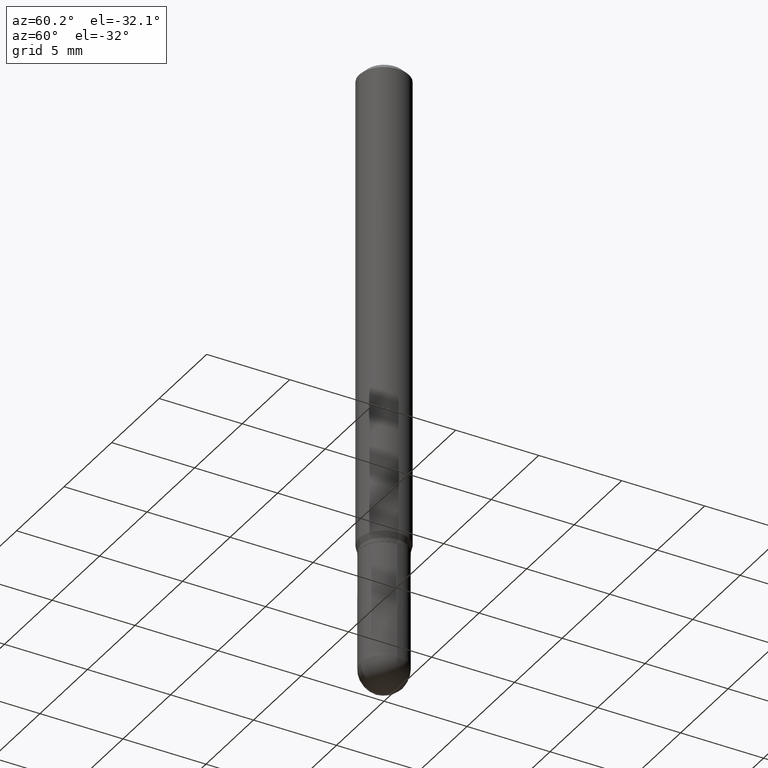
[diagram: clean part render]
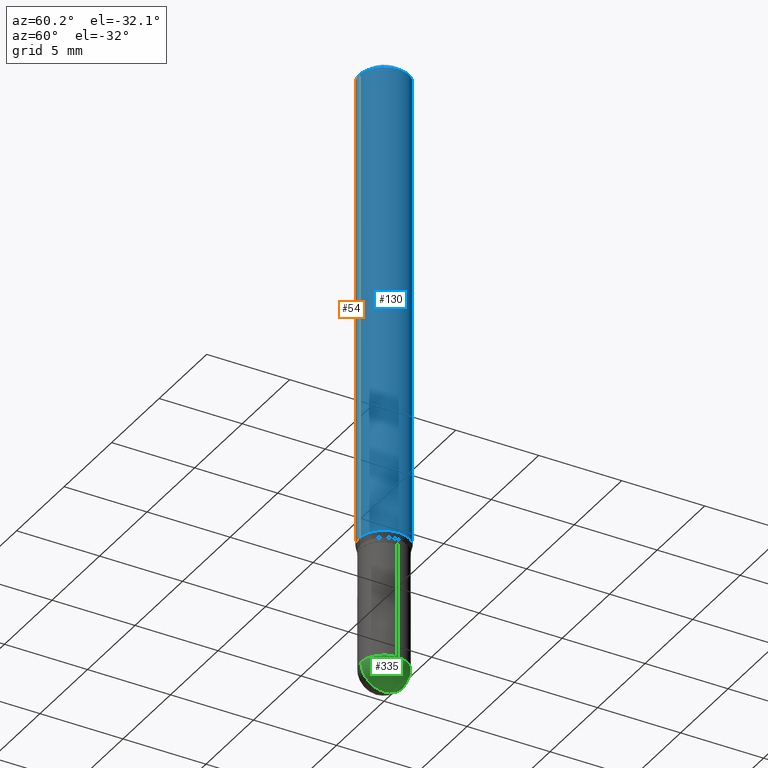
[diagram: same view with three faces highlighted in distinct colors, each labeled with its STEP entity id]
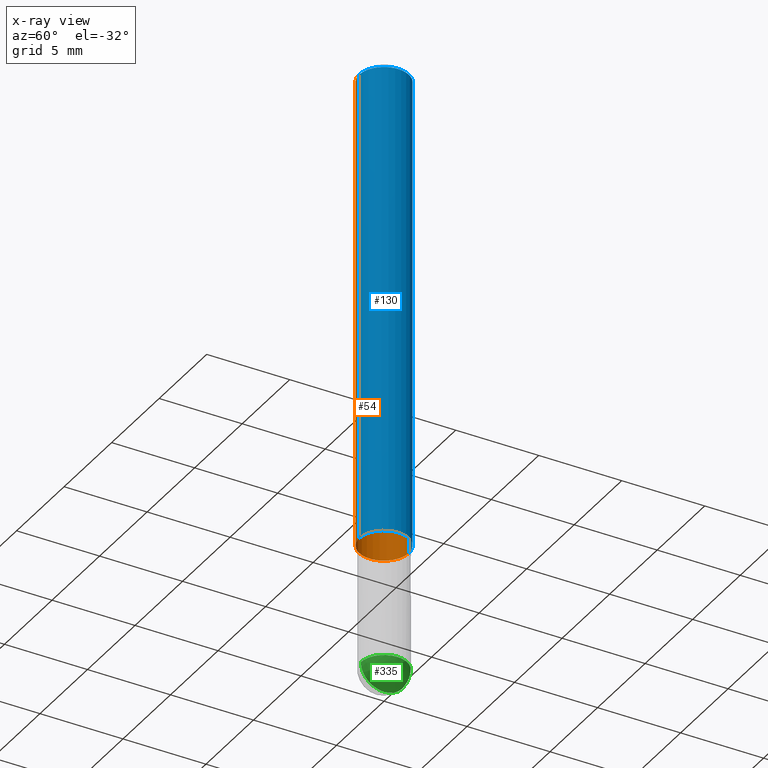
[diagram: x-ray of the same camera — body ghosted, the three highlighted faces saturated]
A machine part, auxiliary view with three faces highlighted in distinct colors.
The next image is the same camera in x-ray (body ghosted, the three faces saturated) — at least one of them is partly hidden behind the body in this view.
Their STEP definitions:

[orange] entity #54 — the highlighted cylindrical surface (edge-blend (fillet) strip) has radius 1.4999 mm, axis along (-0, 0, 1).
#8 = CARTESIAN_POINT ( 'NONE',  ( -4.123439461173739834E-16, -0.05904999999999999832, 2.061750760752110574E-16 ) ) ;
#23 = VECTOR ( 'NONE', #123, 39.37007874015748143 ) ;
#38 = DIRECTION ( 'NONE',  ( -2.445432111437345549E-29, 3.491533887810517591E-15, 1.000000000000000000 ) ) ;
#40 = DIRECTION ( 'NONE',  ( -2.445432111437345549E-29, 3.491533887810517591E-15, 1.000000000000000000 ) ) ;
#54 = ADVANCED_FACE ( 'NONE', ( #117 ), #196, .T. ) ;
#73 = CARTESIAN_POINT ( 'NONE',  ( 0.000000000000000000, 0.000000000000000000, 0.000000000000000000 ) ) ;
#79 = CIRCLE ( 'NONE', #470, 0.05904999999999999832 ) ;
#80 = LINE ( 'NONE', #482, #23 ) ;
#83 = CARTESIAN_POINT ( 'NONE',  ( 2.789402677853648417E-29, -3.982647455606926510E-15, -1.140658399310103155 ) ) ;
#84 = EDGE_CURVE ( 'NONE', #217, #288, #79, .T. ) ;
#86 = LINE ( 'NONE', #8, #371 ) ;
#117 = FACE_OUTER_BOUND ( 'NONE', #206, .T. ) ;
#123 = DIRECTION ( 'NONE',  ( -2.445432111437345549E-29, 3.491533887810517197E-15, 1.000000000000000000 ) ) ;
#165 = ORIENTED_EDGE ( 'NONE', *, *, #266, .T. ) ;
#196 = CYLINDRICAL_SURFACE ( 'NONE', #383, 0.05904999999999999832 ) ;
#206 = EDGE_LOOP ( 'NONE', ( #445, #165, #433, #385 ) ) ;
#213 = DIRECTION ( 'NONE',  ( -6.982962677686265922E-15, -1.000000000000000000, 4.626330217890369336E-15 ) ) ;
#217 = VERTEX_POINT ( 'NONE', #375 ) ;
#237 = CARTESIAN_POINT ( 'NONE',  ( 3.668148167156040884E-31, -5.237300831715808113E-17, -0.01500000000000009139 ) ) ;
#240 = DIRECTION ( 'NONE',  ( -2.445432111437345549E-29, 3.491533887810517591E-15, 1.000000000000000000 ) ) ;
#248 = EDGE_CURVE ( 'NONE', #438, #217, #80, .T. ) ;
#266 = EDGE_CURVE ( 'NONE', #438, #318, #480, .T. ) ;
#288 = VERTEX_POINT ( 'NONE', #334 ) ;
#289 = CARTESIAN_POINT ( 'NONE',  ( -4.123439461173462253E-16, -0.05905000000000400207, -1.140658399310102933 ) ) ;
#292 = EDGE_CURVE ( 'NONE', #318, #288, #86, .T. ) ;
#318 = VERTEX_POINT ( 'NONE', #289 ) ;
#334 = CARTESIAN_POINT ( 'NONE',  ( -4.123439461173736383E-16, -0.05905000000000005383, -0.01499999999999988495 ) ) ;
#362 = AXIS2_PLACEMENT_3D ( 'NONE', #83, #40, #213 ) ;
#371 = VECTOR ( 'NONE', #376, 39.37007874015748143 ) ;
#375 = CARTESIAN_POINT ( 'NONE',  ( 4.195754854663672017E-16, 0.05904999999999994975, -0.01500000000000029955 ) ) ;
#376 = DIRECTION ( 'NONE',  ( -2.445432111437345549E-29, 3.491533887810517197E-15, 1.000000000000000000 ) ) ;
#383 = AXIS2_PLACEMENT_3D ( 'NONE', #73, #240, #465 ) ;
#385 = ORIENTED_EDGE ( 'NONE', *, *, #84, .F. ) ;
#433 = ORIENTED_EDGE ( 'NONE', *, *, #292, .T. ) ;
#438 = VERTEX_POINT ( 'NONE', #500 ) ;
#445 = ORIENTED_EDGE ( 'NONE', *, *, #248, .F. ) ;
#465 = DIRECTION ( 'NONE',  ( -6.982962677686265922E-15, -1.000000000000000000, 3.491533887810517591E-15 ) ) ;
#470 = AXIS2_PLACEMENT_3D ( 'NONE', #237, #38, #472 ) ;
#472 = DIRECTION ( 'NONE',  ( -6.982962677686265922E-15, -1.000000000000000000, 3.505890868245046092E-15 ) ) ;
#480 = CIRCLE ( 'NONE', #362, 0.05904999999999999832 ) ;
#482 = CARTESIAN_POINT ( 'NONE',  ( 4.195754854663390985E-16, 0.05904999999999999832, -2.061750760752110574E-16 ) ) ;
#500 = CARTESIAN_POINT ( 'NONE',  ( 4.195754854663668566E-16, 0.05904999999999599458, -1.140658399310103377 ) ) ;

[blue] entity #130 — the highlighted cylindrical surface (edge-blend (fillet) strip) has radius 1.4999 mm, axis along (-0, 0, 1).
#8 = CARTESIAN_POINT ( 'NONE',  ( -4.123439461173739834E-16, -0.05904999999999999832, 2.061750760752110574E-16 ) ) ;
#23 = VECTOR ( 'NONE', #123, 39.37007874015748143 ) ;
#30 = AXIS2_PLACEMENT_3D ( 'NONE', #45, #370, #405 ) ;
#45 = CARTESIAN_POINT ( 'NONE',  ( 3.668148167156040884E-31, -5.237300831715808113E-17, -0.01500000000000009139 ) ) ;
#61 = DIRECTION ( 'NONE',  ( -6.982962677686265922E-15, -1.000000000000000000, 3.491533887810517591E-15 ) ) ;
#80 = LINE ( 'NONE', #482, #23 ) ;
#86 = LINE ( 'NONE', #8, #371 ) ;
#99 = EDGE_CURVE ( 'NONE', #318, #438, #337, .T. ) ;
#114 = CARTESIAN_POINT ( 'NONE',  ( 2.789402677853648417E-29, -3.982647455606926510E-15, -1.140658399310103155 ) ) ;
#123 = DIRECTION ( 'NONE',  ( -2.445432111437345549E-29, 3.491533887810517197E-15, 1.000000000000000000 ) ) ;
#130 = ADVANCED_FACE ( 'NONE', ( #437 ), #203, .T. ) ;
#169 = ORIENTED_EDGE ( 'NONE', *, *, #248, .T. ) ;
#203 = CYLINDRICAL_SURFACE ( 'NONE', #498, 0.05904999999999999832 ) ;
#217 = VERTEX_POINT ( 'NONE', #375 ) ;
#223 = EDGE_CURVE ( 'NONE', #288, #217, #423, .T. ) ;
#248 = EDGE_CURVE ( 'NONE', #438, #217, #80, .T. ) ;
#274 = ORIENTED_EDGE ( 'NONE', *, *, #99, .T. ) ;
#282 = ORIENTED_EDGE ( 'NONE', *, *, #223, .F. ) ;
#288 = VERTEX_POINT ( 'NONE', #334 ) ;
#289 = CARTESIAN_POINT ( 'NONE',  ( -4.123439461173462253E-16, -0.05905000000000400207, -1.140658399310102933 ) ) ;
#292 = EDGE_CURVE ( 'NONE', #318, #288, #86, .T. ) ;
#301 = AXIS2_PLACEMENT_3D ( 'NONE', #114, #317, #359 ) ;
#317 = DIRECTION ( 'NONE',  ( -2.445432111437345549E-29, 3.491533887810517591E-15, 1.000000000000000000 ) ) ;
#318 = VERTEX_POINT ( 'NONE', #289 ) ;
#334 = CARTESIAN_POINT ( 'NONE',  ( -4.123439461173736383E-16, -0.05905000000000005383, -0.01499999999999988495 ) ) ;
#337 = CIRCLE ( 'NONE', #301, 0.05904999999999999832 ) ;
#359 = DIRECTION ( 'NONE',  ( -6.982962677686265922E-15, -1.000000000000000000, 4.626330217890369336E-15 ) ) ;
#370 = DIRECTION ( 'NONE',  ( -2.445432111437345549E-29, 3.491533887810517591E-15, 1.000000000000000000 ) ) ;
#371 = VECTOR ( 'NONE', #376, 39.37007874015748143 ) ;
#374 = ORIENTED_EDGE ( 'NONE', *, *, #292, .F. ) ;
#375 = CARTESIAN_POINT ( 'NONE',  ( 4.195754854663672017E-16, 0.05904999999999994975, -0.01500000000000029955 ) ) ;
#376 = DIRECTION ( 'NONE',  ( -2.445432111437345549E-29, 3.491533887810517197E-15, 1.000000000000000000 ) ) ;
#400 = CARTESIAN_POINT ( 'NONE',  ( 0.000000000000000000, 0.000000000000000000, 0.000000000000000000 ) ) ;
#405 = DIRECTION ( 'NONE',  ( -6.982962677686265922E-15, -1.000000000000000000, 3.505890868245046092E-15 ) ) ;
#423 = CIRCLE ( 'NONE', #30, 0.05904999999999999832 ) ;
#437 = FACE_OUTER_BOUND ( 'NONE', #469, .T. ) ;
#438 = VERTEX_POINT ( 'NONE', #500 ) ;
#468 = DIRECTION ( 'NONE',  ( -2.445432111437345549E-29, 3.491533887810517591E-15, 1.000000000000000000 ) ) ;
#469 = EDGE_LOOP ( 'NONE', ( #274, #169, #282, #374 ) ) ;
#482 = CARTESIAN_POINT ( 'NONE',  ( 4.195754854663390985E-16, 0.05904999999999999832, -2.061750760752110574E-16 ) ) ;
#498 = AXIS2_PLACEMENT_3D ( 'NONE', #400, #468, #61 ) ;
#500 = CARTESIAN_POINT ( 'NONE',  ( 4.195754854663668566E-16, 0.05904999999999599458, -1.140658399310103377 ) ) ;

[green] entity #335 — the highlighted spherical surface has radius 1.3995 mm.
#5 = VERTEX_POINT ( 'NONE', #387 ) ;
#10 = CIRCLE ( 'NONE', #194, 0.05510000000000001702 ) ;
#16 = DIRECTION ( 'NONE',  ( 1.000000000000000000, -7.105427357601001070E-15, 4.926315508542082329E-29 ) ) ;
#22 = SPHERICAL_SURFACE ( 'NONE', #135, 0.05509999999999996151 ) ;
#24 = DIRECTION ( 'NONE',  ( -1.000000000000000000, 6.982962677686265922E-15, -4.883557194083112340E-29 ) ) ;
#31 = CARTESIAN_POINT ( 'NONE',  ( 3.915090474038502304E-16, 0.05509999999999495857, -1.441000000000000059 ) ) ;
#49 = AXIS2_PLACEMENT_3D ( 'NONE', #218, #205, #129 ) ;
#57 = VERTEX_POINT ( 'NONE', #440 ) ;
#71 = EDGE_LOOP ( 'NONE', ( #436, #185, #501, #103 ) ) ;
#82 = FACE_OUTER_BOUND ( 'NONE', #71, .T. ) ;
#92 = CIRCLE ( 'NONE', #391, 0.05509999999999996151 ) ;
#97 = VERTEX_POINT ( 'NONE', #31 ) ;
#102 = DIRECTION ( 'NONE',  ( -6.982962677686265922E-15, -1.000000000000000000, 4.957981839681061778E-15 ) ) ;
#103 = ORIENTED_EDGE ( 'NONE', *, *, #421, .F. ) ;
#129 = DIRECTION ( 'NONE',  ( 1.000000000000000000, -6.982962677686272233E-15, 0.000000000000000000 ) ) ;
#132 = CARTESIAN_POINT ( 'NONE',  ( 3.519208583459403574E-29, -5.037972413136274752E-15, -1.441000000000000059 ) ) ;
#133 = DIRECTION ( 'NONE',  ( 1.000000000000000000, -6.982962677686272233E-15, 0.000000000000000000 ) ) ;
#135 = AXIS2_PLACEMENT_3D ( 'NONE', #132, #460, #102 ) ;
#137 = CARTESIAN_POINT ( 'NONE',  ( 3.523920549712781226E-29, -5.031224609272972078E-15, -1.440999999999999837 ) ) ;
#154 = VERTEX_POINT ( 'NONE', #324 ) ;
#185 = ORIENTED_EDGE ( 'NONE', *, *, #293, .T. ) ;
#194 = AXIS2_PLACEMENT_3D ( 'NONE', #137, #492, #133 ) ;
#205 = DIRECTION ( 'NONE',  ( -2.445468806185136597E-29, 3.491481338843145583E-15, 1.000000000000000000 ) ) ;
#218 = CARTESIAN_POINT ( 'NONE',  ( 3.523920549712781226E-29, -5.031224609272972078E-15, -1.440999999999999837 ) ) ;
#257 = CARTESIAN_POINT ( 'NONE',  ( 3.519208583459403574E-29, -5.037972413136274752E-15, -1.441000000000000059 ) ) ;
#278 = CIRCLE ( 'NONE', #454, 0.05509999999999996151 ) ;
#281 = EDGE_CURVE ( 'NONE', #5, #97, #329, .T. ) ;
#293 = EDGE_CURVE ( 'NONE', #154, #97, #92, .T. ) ;
#298 = CARTESIAN_POINT ( 'NONE',  ( 3.519208583459403574E-29, -5.037972413136274752E-15, -1.441000000000000059 ) ) ;
#324 = CARTESIAN_POINT ( 'NONE',  ( 3.651597931553515351E-29, -5.233726936838182882E-15, -1.496099999999999985 ) ) ;
#329 = CIRCLE ( 'NONE', #49, 0.05510000000000001702 ) ;
#335 = ADVANCED_FACE ( 'NONE', ( #82 ), #22, .T. ) ;
#336 = DIRECTION ( 'NONE',  ( 7.105427357601001070E-15, 1.000000000000000000, 0.000000000000000000 ) ) ;
#387 = CARTESIAN_POINT ( 'NONE',  ( 0.05510000000000001702, -4.934859724320901137E-15, -1.440999999999999837 ) ) ;
#391 = AXIS2_PLACEMENT_3D ( 'NONE', #257, #16, #336 ) ;
#421 = EDGE_CURVE ( 'NONE', #57, #5, #10, .T. ) ;
#436 = ORIENTED_EDGE ( 'NONE', *, *, #487, .F. ) ;
#440 = CARTESIAN_POINT ( 'NONE',  ( -3.847612435404779394E-16, -0.05510000000000501996, -1.440999999999999392 ) ) ;
#453 = DIRECTION ( 'NONE',  ( -6.982962677686265922E-15, -1.000000000000000000, 0.000000000000000000 ) ) ;
#454 = AXIS2_PLACEMENT_3D ( 'NONE', #298, #24, #453 ) ;
#460 = DIRECTION ( 'NONE',  ( 1.000000000000000000, -6.982962677686265922E-15, 4.883557194083112901E-29 ) ) ;
#487 = EDGE_CURVE ( 'NONE', #154, #57, #278, .T. ) ;
#492 = DIRECTION ( 'NONE',  ( -2.445468806185136597E-29, 3.491481338843145583E-15, 1.000000000000000000 ) ) ;
#501 = ORIENTED_EDGE ( 'NONE', *, *, #281, .F. ) ;